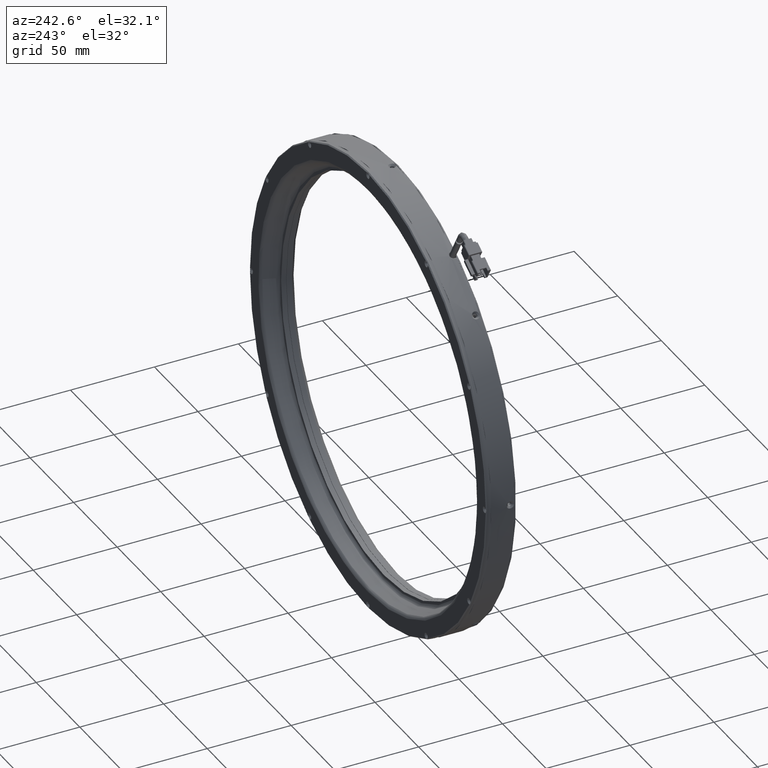
[diagram: clean part render]
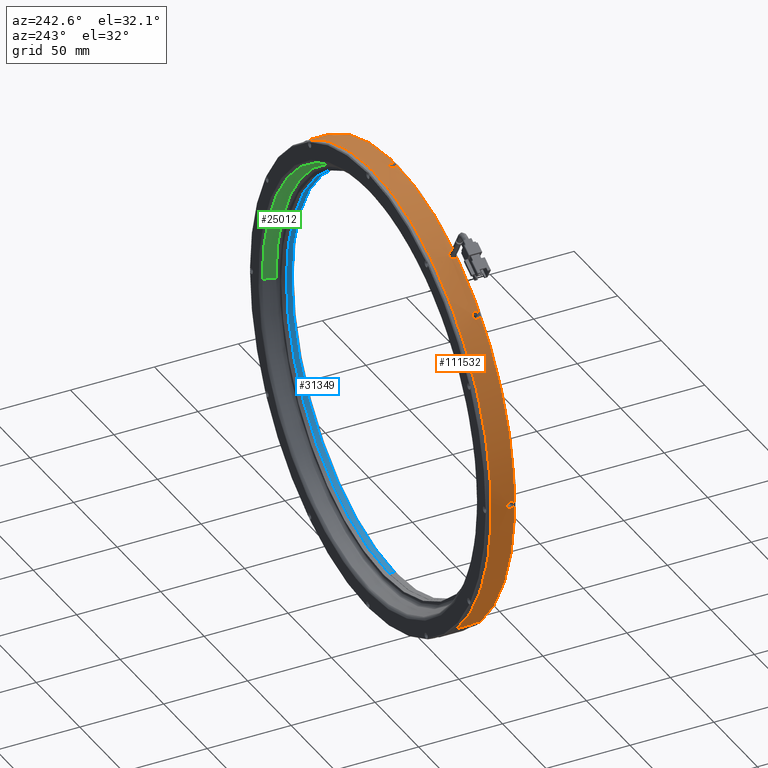
[diagram: same view with three faces highlighted in distinct colors, each labeled with its STEP entity id]
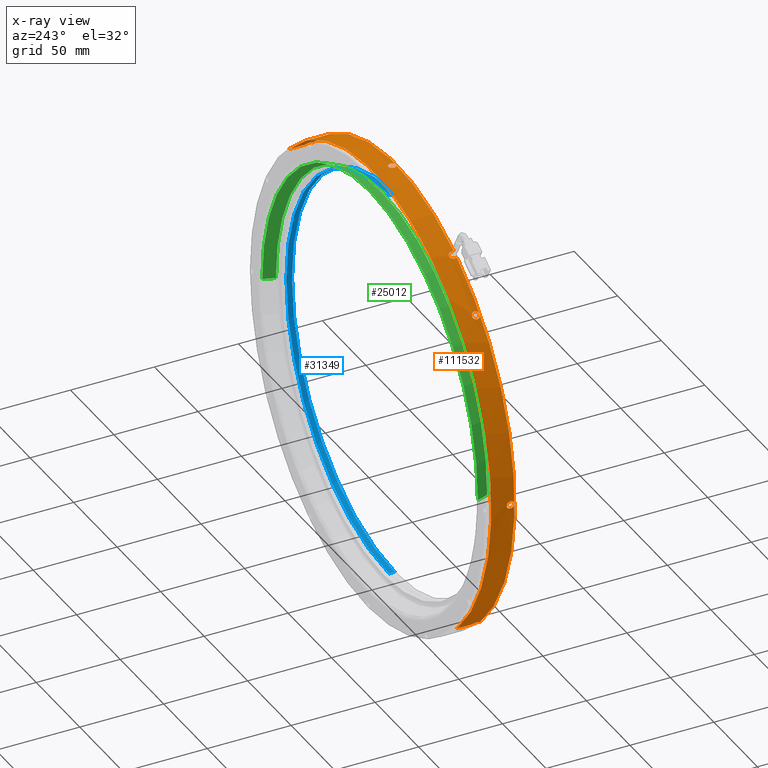
[diagram: x-ray of the same camera — body ghosted, the three highlighted faces saturated]
A machine part, auxiliary view with three faces highlighted in distinct colors.
The next image is the same camera in x-ray (body ghosted, the three faces saturated) — at least one of them is partly hidden behind the body in this view.
Their STEP definitions:

[orange] entity #111532 — the highlighted cylindrical surface (partial cylindrical patch) has radius 136 mm, axis along (0, -1, 0).
#114 = CARTESIAN_POINT ( 'NONE',  ( -159.3027793184269000, 2.318751137120334400, -0.2866651005242598600 ) ) ;
#574 = CARTESIAN_POINT ( 'NONE',  ( -159.2854956090154400, 0.4224120804676271800, 2.182486926860118800 ) ) ;
#642 = DIRECTION ( 'NONE',  ( 0.7071067811865480200, 0.0000000000000000000, 0.7071067811865470200 ) ) ;
#707 = CARTESIAN_POINT ( 'NONE',  ( -120.8474614957355700, -0.8393975857571641700, -94.76857425197322000 ) ) ;
#1281 = VECTOR ( 'NONE', #105024, 1000.000000000000000 ) ;
#1705 = CARTESIAN_POINT ( 'NONE',  ( -24.40483843466375900, 2.053681805915533100, 135.9957912599233800 ) ) ;
#2089 = CARTESIAN_POINT ( 'NONE',  ( 71.91529419645444000, -1.613760672031683300, 97.10555584605022300 ) ) ;
#2138 = CARTESIAN_POINT ( 'NONE',  ( -21.40851104385181000, 1.234631180252435200, 135.9868269658736300 ) ) ;
#2314 = CARTESIAN_POINT ( 'NONE',  ( -119.9683183523100500, 2.219301314170897900, -95.66522507973195400 ) ) ;
#2859 = CARTESIAN_POINT ( 'NONE',  ( 72.86351355921679800, 11.56998264099750500, 96.16652224137030200 ) ) ;
#3161 = CARTESIAN_POINT ( 'NONE',  ( 71.51329995925941300, 1.231570221032728800, 97.49807113080511600 ) ) ;
#3494 = CARTESIAN_POINT ( 'NONE',  ( -119.4695309235244600, -2.366976514679583600, -96.16652224137034500 ) ) ;
#4143 = CARTESIAN_POINT ( 'NONE',  ( -89.48210122964326300, -0.6669765146795694200, 118.8121530382764600 ) ) ;
#4717 = CARTESIAN_POINT ( 'NONE',  ( -93.10780521788211700, -2.366976514679583600, 116.7188518646648300 ) ) ;
#4933 = CARTESIAN_POINT ( 'NONE',  ( -120.9229388333348300, 0.8412015361908464800, 94.69082417221591200 ) ) ;
#4934 = EDGE_CURVE ( 'NONE', #9831, #25402, #33652, .T. ) ;
#5370 = CARTESIAN_POINT ( 'NONE',  ( -119.0678700534752700, 2.262371113860363300, 96.56661400162622000 ) ) ;
#5489 = CARTESIAN_POINT ( 'NONE',  ( -21.34034424053000500, -0.8397713082302186200, 135.9858481365783700 ) ) ;
#5752 = CARTESIAN_POINT ( 'NONE',  ( -119.3672039055975600, -2.066877823440802500, 96.26884703748109500 ) ) ;
#5955 = CARTESIAN_POINT ( 'NONE',  ( -24.00654334851903800, -1.954590368092795800, 135.9982453930731800 ) ) ;
#5970 = DIRECTION ( 'NONE',  ( 0.0000000000000000000, -1.000000000000000000, 0.0000000000000000000 ) ) ;
#6192 = CARTESIAN_POINT ( 'NONE',  ( -121.0003986165799400, 0.1330234853204155500, 94.61088732276373000 ) ) ;
#7285 = VERTEX_POINT ( 'NONE', #90647 ) ;
#7708 = CARTESIAN_POINT ( 'NONE',  ( -93.09611753606797900, -0.3932184659480840200, 116.7258440458054500 ) ) ;
#8152 = CARTESIAN_POINT ( 'NONE',  ( -90.83369261503673900, 1.352369534076088200, 118.0492468283402700 ) ) ;
#8585 = CARTESIAN_POINT ( 'NONE',  ( -159.2930816537006000, -1.318408872185995200, 1.646241867142423500 ) ) ;
#8598 = CARTESIAN_POINT ( 'NONE',  ( -89.48210432692978600, -0.5289361051625620600, 118.8121513130689200 ) ) ;
#8713 = CARTESIAN_POINT ( 'NONE',  ( 71.30787864053120000, 0.1330234853204155500, 97.69738993450232600 ) ) ;
#9045 = CARTESIAN_POINT ( 'NONE',  ( -159.2930762617812900, -1.317953978923950500, -1.646740645657849500 ) ) ;
#9831 = VERTEX_POINT ( 'NONE', #67922 ) ;
#9975 = CARTESIAN_POINT ( 'NONE',  ( -159.2857228018479800, 0.4203440826255182600, -2.168461705942111200 ) ) ;
#10428 = CARTESIAN_POINT ( 'NONE',  ( -159.3030102370196900, 2.333121159192467400, 0.1417424788635197900 ) ) ;
#10439 = DIRECTION ( 'NONE',  ( 0.0000000000000000000, -1.000000000000000000, 0.0000000000000000000 ) ) ;
#10484 = CARTESIAN_POINT ( 'NONE',  ( -119.4695309235244600, 2.333023485425862500, -96.16652224137034500 ) ) ;
#11023 = CARTESIAN_POINT ( 'NONE',  ( -120.6907043165206900, -1.205275985385054100, -94.92967395729959900 ) ) ;
#11565 = CARTESIAN_POINT ( 'NONE',  ( -25.48549560901630800, 0.1330234853204155000, 135.9824869268615500 ) ) ;
#12008 = CARTESIAN_POINT ( 'NONE',  ( -23.87102625445879400, 2.262119430668731100, 135.9988865617520200 ) ) ;
#12407 = CARTESIAN_POINT ( 'NONE',  ( 71.62060438310811600, -1.216764278633733600, 97.39377748829271300 ) ) ;
#12466 = CARTESIAN_POINT ( 'NONE',  ( -21.17748613817605400, 0.7086729047357242000, 135.9834325815019200 ) ) ;
#12637 = CARTESIAN_POINT ( 'NONE',  ( -120.2416763863684300, 2.040766875177075800, -95.38820096314128700 ) ) ;
#13502 = CARTESIAN_POINT ( 'NONE',  ( 71.69212099016485200, 1.583959908746958900, 97.32386851563367700 ) ) ;
#13739 = B_SPLINE_CURVE_WITH_KNOTS ( 'NONE', 3,
 ( #15180, #67227, #77628, #15601, #88018, #25994, #98429, #36430, #108860, #46776, #119275, #57224, #129729, #67663, #5752, #78076, #16057, #88468, #26465, #98876, #36864, #109304, #47225, #119718, #57681, #130157, #68127, #6192 ),
 .UNSPECIFIED., .F., .F.,
 ( 4, 2, 2, 2, 2, 2, 2, 2, 2, 2, 2, 2, 2, 4 ),
 ( 0.006871121403889675200, 0.007300564399102735900, 0.007730007394315796700, 0.008159450389528857500, 0.008588893384741919100, 0.009447779375168063200, 0.009877222370381133500, 0.01030666536559420400, 0.01073610836080727600, 0.01116555135602034800, 0.01202443734644649000, 0.01245388034165955000, 0.01288332333687261200, 0.01374220932729874200 ),
 .UNSPECIFIED. ) ;
#15179 = AXIS2_PLACEMENT_3D ( 'NONE', #69278, #59270, #38907 ) ;
#15180 = CARTESIAN_POINT ( 'NONE',  ( -117.9138960049193400, 0.1330234853204152700, 97.69738993442439300 ) ) ;
#15263 = CARTESIAN_POINT ( 'NONE',  ( -120.8009187847789900, 1.231983678219085200, 94.81647427752776000 ) ) ;
#15572 = CIRCLE ( 'NONE', #23731, 136.0000000000000300 ) ;
#15601 = CARTESIAN_POINT ( 'NONE',  ( -117.9637137925806200, -0.4355316633991739800, 97.64912530855259800 ) ) ;
#15670 = CARTESIAN_POINT ( 'NONE',  ( -118.6867736088039300, 2.053600671757594800, 96.94332484757723000 ) ) ;
#15804 = CARTESIAN_POINT ( 'NONE',  ( -21.56528461135165000, -1.205757468061440500, 135.9889208128898600 ) ) ;
#16057 = CARTESIAN_POINT ( 'NONE',  ( -119.6721887262015400, -2.052638801886044600, 95.96353865320620000 ) ) ;
#16265 = CARTESIAN_POINT ( 'NONE',  ( -24.64626342342435100, -1.624804716323849500, 135.9935167828334100 ) ) ;
#16963 = DIRECTION ( 'NONE',  ( 0.0000000000000000000, -1.000000000000000000, 0.0000000000000000000 ) ) ;
#17241 = CARTESIAN_POINT ( 'NONE',  ( -119.6726310283420500, -2.052618195270161600, -95.96309580678064300 ) ) ;
#18071 = CARTESIAN_POINT ( 'NONE',  ( -93.01564176930726500, 0.006440380977282521300, 116.7739335749839400 ) ) ;
#18507 = CARTESIAN_POINT ( 'NONE',  ( -90.50053387792131300, 1.209100647409597600, 118.2392009253320600 ) ) ;
#18949 = CARTESIAN_POINT ( 'NONE',  ( -159.2987999420772700, -1.787634835274724400, 1.101829752507554000 ) ) ;
#19152 = EDGE_CURVE ( 'NONE', #103136, #48005, #64293, .T. ) ;
#19391 = CARTESIAN_POINT ( 'NONE',  ( -159.2898356480274600, -0.9685842096116141800, -1.894497638304434300 ) ) ;
#20029 = DIRECTION ( 'NONE',  ( -0.0000000000000000000, 1.000000000000000000, -0.0000000000000000000 ) ) ;
#20071 = EDGE_CURVE ( 'NONE', #7285, #106005, #55157, .T. ) ;
#20368 = CARTESIAN_POINT ( 'NONE',  ( -159.2872471593278800, 0.8412015361929307000, -2.071190700546538200 ) ) ;
#20548 = LINE ( 'NONE', #50669, #72398 ) ;
#20816 = CARTESIAN_POINT ( 'NONE',  ( -159.3018991539785800, 2.262371113866636000, 0.5669247217240914700 ) ) ;
#20911 = EDGE_CURVE ( 'NONE', #116663, #43777, #56178, .T. ) ;
#20952 = CARTESIAN_POINT ( 'NONE',  ( -121.0003986166563500, -0.01161011630343935700, -94.61088732268881100 ) ) ;
#21394 = CARTESIAN_POINT ( 'NONE',  ( -120.4167069457009700, -1.622235651516406500, -95.21013489546513100 ) ) ;
#21942 = CARTESIAN_POINT ( 'NONE',  ( -25.48549560901632900, 0.2777170778512292300, 135.9824869268615800 ) ) ;
#22004 = B_SPLINE_CURVE_WITH_KNOTS ( 'NONE', 3,
 ( #11565, #21942, #94362, #32341, #104815, #42777, #115215, #53168, #125693, #63600, #1705, #74041, #12008, #84406, #22397, #94808, #32810, #105249, #43207, #115665, #53621, #126135, #64053, #2138, #74469, #12466, #84847, #22839 ),
 .UNSPECIFIED., .F., .F.,
 ( 4, 2, 2, 2, 2, 2, 2, 2, 2, 2, 2, 2, 2, 4 ),
 ( 1.707618421664669500E-018, 0.0004294450877443604800, 0.0008588901754887192200, 0.001288335263233077500, 0.001717780350977435800, 0.002576670526466151600, 0.003006115614210504200, 0.003435560701954856900, 0.003865005789699210000, 0.004294450877443562300, 0.005153341052932276300, 0.005582786140676638000, 0.006012231228420998100, 0.006871121403909719900 ),
 .UNSPECIFIED. ) ;
#22397 = CARTESIAN_POINT ( 'NONE',  ( -23.44771936764437800, 2.332924794088076000, 135.9999984289387700 ) ) ;
#22797 = CARTESIAN_POINT ( 'NONE',  ( 71.38790397096370600, -0.5754648091498955100, 97.61984426851938700 ) ) ;
#22839 = CARTESIAN_POINT ( 'NONE',  ( -21.12052175529322500, 0.1330234853204152200, 135.9824869268615800 ) ) ;
#23025 = CARTESIAN_POINT ( 'NONE',  ( -120.4865276742109900, 1.787144254398366400, -95.13870762744851100 ) ) ;
#23731 = AXIS2_PLACEMENT_3D ( 'NONE', #82045, #20029, #92418 ) ;
#23861 = CARTESIAN_POINT ( 'NONE',  ( 72.08084536441649000, 2.053188112360741200, 96.94322858433889700 ) ) ;
#25402 = VERTEX_POINT ( 'NONE', #101642 ) ;
#25631 = CARTESIAN_POINT ( 'NONE',  ( -120.6265802421161500, 1.584455842822584300, 94.99543398450606400 ) ) ;
#25668 = FACE_BOUND ( 'NONE', #83647, .T. ) ;
#25991 = CARTESIAN_POINT ( 'NONE',  ( -89.48210122964324900, -2.366976514679583600, 118.8121530382764600 ) ) ;
#25994 = CARTESIAN_POINT ( 'NONE',  ( -118.0717107090708100, -0.8397713082273793300, 97.54432869864038500 ) ) ;
#26062 = EDGE_CURVE ( 'NONE', #114736, #133076, #91768, .T. ) ;
#26069 = CARTESIAN_POINT ( 'NONE',  ( -118.2980861643304300, 1.584000949560546300, 97.32392043696639000 ) ) ;
#26203 = CARTESIAN_POINT ( 'NONE',  ( -21.95763244565786800, -1.622758253830477000, 135.9934932235704300 ) ) ;
#26331 = ORIENTED_EDGE ( 'NONE', *, *, #90933, .T. ) ;
#26465 = CARTESIAN_POINT ( 'NONE',  ( -119.9657643624534700, -1.954590368086704300, 95.66780741352876300 ) ) ;
#26677 = CARTESIAN_POINT ( 'NONE',  ( -25.03966541619294300, -1.207090468230156000, 135.9889343032590100 ) ) ;
#27648 = CARTESIAN_POINT ( 'NONE',  ( -119.4695309235244600, -2.066976514785033200, -96.16652224137034500 ) ) ;
#28451 = CARTESIAN_POINT ( 'NONE',  ( -92.86979581466826500, 0.3790800838724685500, 116.8608913306689800 ) ) ;
#28823 = CARTESIAN_POINT ( 'NONE',  ( 72.86351355922867900, 2.333023485419867700, 96.16652224138214000 ) ) ;
#28880 = CARTESIAN_POINT ( 'NONE',  ( -159.2857228018479800, -0.1542971119846800200, 2.168461705939216600 ) ) ;
#28886 = CARTESIAN_POINT ( 'NONE',  ( -90.19659123652273500, 0.9934096878145470800, 118.4114077106920700 ) ) ;
#28887 = FACE_BOUND ( 'NONE', #52767, .T. ) ;
#29314 = CARTESIAN_POINT ( 'NONE',  ( -159.3018952439058200, -1.996072460027903200, 0.5680175723025718800 ) ) ;
#29417 = B_SPLINE_CURVE_WITH_KNOTS ( 'NONE', 3,
 ( #93359, #20952, #52142, #124689, #62588, #707, #73036, #11023, #83418, #21394, #93797, #31803, #79288, #17241, #89640, #27648 ),
 .UNSPECIFIED., .F., .F.,
 ( 4, 2, 2, 2, 2, 2, 2, 4 ),
 ( -0.003432439768485876300, -0.003003384797425037500, -0.002574329826364198600, -0.002145274855303360200, -0.001716219884242522500, -0.0008581099421208454400, -0.0004290549710599935900, 8.582544397395253100E-016 ),
 .UNSPECIFIED. ) ;
#29772 = CARTESIAN_POINT ( 'NONE',  ( -159.2864412636557700, -0.4426259340949083600, -2.125522543980220100 ) ) ;
#30743 = CARTESIAN_POINT ( 'NONE',  ( -159.2898139970761500, 1.231983678222310100, -1.896061455248663200 ) ) ;
#31211 = CARTESIAN_POINT ( 'NONE',  ( -159.2987980673838400, 2.053600671763251100, 1.102775395757320500 ) ) ;
#31803 = CARTESIAN_POINT ( 'NONE',  ( -119.9689868269774100, -1.952902800456813600, -95.66454915269136400 ) ) ;
#32341 = CARTESIAN_POINT ( 'NONE',  ( -25.41614086929173400, 0.7015786340416604300, 135.9835851780952100 ) ) ;
#32571 = CARTESIAN_POINT ( 'NONE',  ( -93.10780521788211700, -29.84763788070300100, 116.7188518646648300 ) ) ;
#32810 = CARTESIAN_POINT ( 'NONE',  ( -23.01617690396118800, 2.318685772533270100, 135.9997696348729600 ) ) ;
#33208 = CARTESIAN_POINT ( 'NONE',  ( 71.31794725852428500, -0.1543677501644578300, 97.68764234792382700 ) ) ;
#33440 = CARTESIAN_POINT ( 'NONE',  ( -120.8096635900871000, 1.237663069226970300, -94.80751017206634400 ) ) ;
#33652 = B_SPLINE_CURVE_WITH_KNOTS ( 'NONE', 3,
 ( #46101, #108632, #36187, #129498, #67435, #5489, #77824, #15804, #88236, #26203, #98634, #36629, #109079, #46987, #119479, #57444, #129916, #67880, #5955, #78284, #16265, #88669, #26677, #99068, #37075, #109506, #47435, #119907 ),
 .UNSPECIFIED., .F., .F.,
 ( 4, 2, 2, 2, 2, 2, 2, 2, 2, 2, 2, 2, 2, 4 ),
 ( 0.006871121403909719900, 0.007300564399124036600, 0.007730007394338352400, 0.008159450389552670000, 0.008588893384766985900, 0.009447779375195619300, 0.009877222370409942000, 0.01030666536562426300, 0.01073610836083858600, 0.01116555135605290700, 0.01202443734648154200, 0.01245388034169586000, 0.01288332333691017700, 0.01374220932733881200 ),
 .UNSPECIFIED. ) ;
#33850 = CARTESIAN_POINT ( 'NONE',  ( 71.30787864053121400, 0.2776570869439180000, 97.69738993450232600 ) ) ;
#34263 = CARTESIAN_POINT ( 'NONE',  ( 72.46012143251719800, 2.261774328892548300, 96.56833217265834400 ) ) ;
#36067 = CARTESIAN_POINT ( 'NONE',  ( -120.2456661845867100, 2.053681805909930400, 95.38443492301124100 ) ) ;
#36187 = CARTESIAN_POINT ( 'NONE',  ( -21.13454697621411100, -0.1542971119846783800, 135.9827141196941800 ) ) ;
#36430 = CARTESIAN_POINT ( 'NONE',  ( -118.2329402808971800, -1.205757468057544000, 97.38744454732643900 ) ) ;
#36504 = CARTESIAN_POINT ( 'NONE',  ( -118.1206040547836300, 1.234631180249219100, 97.49681962659209900 ) ) ;
#36629 = CARTESIAN_POINT ( 'NONE',  ( -22.59595710768054400, -1.953274386847207100, 135.9982257067167700 ) ) ;
#36864 = CARTESIAN_POINT ( 'NONE',  ( -120.4147711331127700, -1.624804716318734000, 95.21211337813724600 ) ) ;
#37075 = CARTESIAN_POINT ( 'NONE',  ( -25.26572668781765800, -0.8396670414063708300, 135.9858473655014800 ) ) ;
#38590 = VERTEX_POINT ( 'NONE', #86798 ) ;
#38886 = CARTESIAN_POINT ( 'NONE',  ( -92.66280179842772200, 0.7131536411727509300, 116.9838811002227500 ) ) ;
#38907 = DIRECTION ( 'NONE',  ( 0.7071067811865485700, 0.0000000000000000000, 0.7071067811865463500 ) ) ;
#39314 = CARTESIAN_POINT ( 'NONE',  ( -159.2854956090154100, 0.1330234853204151600, 2.182486926860105000 ) ) ;
#39326 = CARTESIAN_POINT ( 'NONE',  ( -89.93394352413102400, 0.7130771374036409800, 118.5593863630711100 ) ) ;
#39772 = CARTESIAN_POINT ( 'NONE',  ( -159.3030071110925700, -2.066877823447254700, 0.1447106854881672100 ) ) ;
#40147 = EDGE_LOOP ( 'NONE', ( #40188, #45083 ) ) ;
#40188 = ORIENTED_EDGE ( 'NONE', *, *, #19152, .T. ) ;
#40210 = CARTESIAN_POINT ( 'NONE',  ( -159.2854956090153800, 0.1330234853204154400, -2.182486926863024500 ) ) ;
#41201 = CARTESIAN_POINT ( 'NONE',  ( -159.2930816537006000, 1.584455842826844300, -1.646241867145333400 ) ) ;
#41647 = CARTESIAN_POINT ( 'NONE',  ( -159.2930762617811800, 1.584000949564787500, 1.646740645654951400 ) ) ;
#42777 = CARTESIAN_POINT ( 'NONE',  ( -25.26567312377950000, 1.105818278871041800, 135.9858481365783100 ) ) ;
#43143 = CARTESIAN_POINT ( 'NONE',  ( 72.66032251141126600, -2.052620988248774900, 96.36938707560911200 ) ) ;
#43207 = CARTESIAN_POINT ( 'NONE',  ( -22.59947401579048400, 2.220637338733650400, 135.9982453930731200 ) ) ;
#43583 = CARTESIAN_POINT ( 'NONE',  ( 71.30787864053120000, 0.1330234853204155500, 97.69738993450232600 ) ) ;
#43777 = VERTEX_POINT ( 'NONE', #52916 ) ;
#43807 = CARTESIAN_POINT ( 'NONE',  ( -120.9520151264167000, 0.7023093000320191900, -94.66082775399733900 ) ) ;
#44571 = CIRCLE ( 'NONE', #54188, 136.0000000000000300 ) ;
#44660 = CARTESIAN_POINT ( 'NONE',  ( 72.76122021365250700, 2.333023485419930800, 96.26881558695828300 ) ) ;
#45083 = ORIENTED_EDGE ( 'NONE', *, *, #128098, .T. ) ;
#45967 = CARTESIAN_POINT ( 'NONE',  ( -121.0003986165799400, 0.1330234853204155500, 94.61088732276373000 ) ) ;
#46101 = CARTESIAN_POINT ( 'NONE',  ( -21.12052175529322500, 0.1330234853204152200, 135.9824869268615800 ) ) ;
#46386 = VERTEX_POINT ( 'NONE', #2859 ) ;
#46426 = CARTESIAN_POINT ( 'NONE',  ( -119.8703926809977500, 2.262119430662523600, 95.76408584442589200 ) ) ;
#46693 = ORIENTED_EDGE ( 'NONE', *, *, #26062, .T. ) ;
#46766 = ORIENTED_EDGE ( 'NONE', *, *, #76981, .F. ) ;
#46776 = CARTESIAN_POINT ( 'NONE',  ( -118.5136052777167200, -1.622758253825361100, 97.11324591570404200 ) ) ;
#46862 = CARTESIAN_POINT ( 'NONE',  ( -117.9548445851506100, 0.7086729047340504200, 97.65777871181077800 ) ) ;
#46945 = CARTESIAN_POINT ( 'NONE',  ( -89.48210122964326300, -29.84763788070300100, 118.8121530382764600 ) ) ;
#46987 = CARTESIAN_POINT ( 'NONE',  ( -23.01634358163195800, -2.052704166479455400, 135.9997706362730100 ) ) ;
#47225 = CARTESIAN_POINT ( 'NONE',  ( -120.6897080475492300, -1.207090468226263100, 94.93069585893738300 ) ) ;
#47435 = CARTESIAN_POINT ( 'NONE',  ( -25.48549560901631500, -0.1563622896624973200, 135.9824869268615500 ) ) ;
#47639 = ORIENTED_EDGE ( 'NONE', *, *, #69921, .F. ) ;
#48005 = VERTEX_POINT ( 'NONE', #52050 ) ;
#48147 = ORIENTED_EDGE ( 'NONE', *, *, #61040, .T. ) ;
#49049 = DIRECTION ( 'NONE',  ( 0.0000000000000000000, -1.000000000000000000, 0.0000000000000000000 ) ) ;
#49250 = CARTESIAN_POINT ( 'NONE',  ( -92.21215080154121300, 1.156506975813422500, 117.2501319484948400 ) ) ;
#49335 = B_SPLINE_CURVE_WITH_KNOTS ( 'NONE', 3,
 ( #106282, #33850, #116702, #54643, #127147, #65072, #3161, #75502, #13502, #85865, #23861, #96296, #34263, #106729, #44660, #117157 ),
 .UNSPECIFIED., .F., .F.,
 ( 4, 2, 2, 2, 2, 2, 2, 4 ),
 ( 0.01029678256474865700, 0.01072583379677307300, 0.01115488502879749000, 0.01158393626082190900, 0.01201298749284632600, 0.01287108995689513800, 0.01330014118891957200, 0.01372919242094400700 ),
 .UNSPECIFIED. ) ;
#49682 = CARTESIAN_POINT ( 'NONE',  ( -159.2865938602490400, -0.4355316634008276100, 2.113132187135557500 ) ) ;
#49694 = CARTESIAN_POINT ( 'NONE',  ( -89.72551546705805900, 0.3817784676109329300, 118.6762670761039300 ) ) ;
#50121 = CARTESIAN_POINT ( 'NONE',  ( -159.3027783170267600, -2.052638801892456400, -0.2868317781950359700 ) ) ;
#50669 = CARTESIAN_POINT ( 'NONE',  ( 72.86351355921679800, -29.84763788070300100, 96.16652224137030200 ) ) ;
#51090 = CARTESIAN_POINT ( 'NONE',  ( -159.2854956090153800, 0.2777170778512278400, -2.182486926862984500 ) ) ;
#51551 = CARTESIAN_POINT ( 'NONE',  ( -159.2987999420772100, 2.053681805915562400, -1.101829752510457200 ) ) ;
#51992 = CARTESIAN_POINT ( 'NONE',  ( -159.2898356480274600, 1.234631180252445400, 1.894497638301530200 ) ) ;
#52050 = CARTESIAN_POINT ( 'NONE',  ( -159.2854956090153800, 0.1330234853204154400, -2.182486926863024500 ) ) ;
#52142 = CARTESIAN_POINT ( 'NONE',  ( -120.9906499482375800, -0.1541788272280675600, -94.62095702396753400 ) ) ;
#52268 = LINE ( 'NONE', #121538, #79837 ) ;
#52646 = CARTESIAN_POINT ( 'NONE',  ( 72.86351355921679800, -2.066976514785981300, 96.16652224137030200 ) ) ;
#52767 = EDGE_LOOP ( 'NONE', ( #64252, #132915 ) ) ;
#52916 = CARTESIAN_POINT ( 'NONE',  ( -93.10780521788211700, -0.6669765146795694200, 116.7188518646648100 ) ) ;
#53168 = CARTESIAN_POINT ( 'NONE',  ( -25.04073275295788300, 1.471804438702277700, 135.9889208128897700 ) ) ;
#53567 = CARTESIAN_POINT ( 'NONE',  ( 72.36221639757803800, -1.953254343531195800, 96.66530967015621900 ) ) ;
#53621 = CARTESIAN_POINT ( 'NONE',  ( -21.95975394088516800, 1.890851686964687000, 135.9935167828334700 ) ) ;
#53799 = CARTESIAN_POINT ( 'NONE',  ( -119.5718176082366300, 2.333023485425979700, -96.06423555665820400 ) ) ;
#54188 = AXIS2_PLACEMENT_3D ( 'NONE', #58330, #130808, #68787 ) ;
#54227 = CARTESIAN_POINT ( 'NONE',  ( -121.0003986166563400, 0.2776457785761395300, -94.61088732268878200 ) ) ;
#54643 = CARTESIAN_POINT ( 'NONE',  ( 71.35765528636595400, 0.7013471116698454200, 97.64916518486755600 ) ) ;
#55157 = LINE ( 'NONE', #99772, #79480 ) ;
#56178 = LINE ( 'NONE', #32571, #1281 ) ;
#56845 = CARTESIAN_POINT ( 'NONE',  ( -119.5718557196366600, 2.332924794081623300, 96.06419522344194200 ) ) ;
#57224 = CARTESIAN_POINT ( 'NONE',  ( -118.9683153457549000, -1.953274386841126900, 96.66522858951513800 ) ) ;
#57302 = CARTESIAN_POINT ( 'NONE',  ( -117.9138960049193400, 0.1330234853204152700, 97.69738993442439300 ) ) ;
#57444 = CARTESIAN_POINT ( 'NONE',  ( -23.44475116101972400, -2.067074188551597300, 136.0000015548658900 ) ) ;
#57681 = CARTESIAN_POINT ( 'NONE',  ( -120.8473747110567700, -0.8396670414035324300, 94.76866360618689100 ) ) ;
#57987 = CARTESIAN_POINT ( 'NONE',  ( -117.9138960049193400, 0.1330234853204152700, 97.69738993442439300 ) ) ;
#58330 = CARTESIAN_POINT ( 'NONE',  ( -23.30300868215381600, 11.56998264099750500, -2.420481350073888600E-014 ) ) ;
#59270 = DIRECTION ( 'NONE',  ( 0.0000000000000000000, -1.000000000000000000, 0.0000000000000000000 ) ) ;
#59687 = CARTESIAN_POINT ( 'NONE',  ( -91.54019504300070800, 1.418560100184624200, 117.6425122508802600 ) ) ;
#59783 = B_SPLINE_CURVE_WITH_KNOTS ( 'NONE', 3,
 ( #52646, #105198, #43143, #115619, #53567, #126074, #64001, #2089, #74418, #12407, #84789, #22797, #95199, #33208, #105635, #43583 ),
 .UNSPECIFIED., .F., .F.,
 ( 4, 2, 2, 2, 2, 2, 2, 4 ),
 ( 0.006864611166064693700, 0.007293632590900187700, 0.007722654015735681700, 0.008151675440571175600, 0.008580696865406670400, 0.009438739715077658400, 0.009867761139913156600, 0.01029678256474865700 ),
 .UNSPECIFIED. ) ;
#60121 = CARTESIAN_POINT ( 'NONE',  ( -159.2888568187322600, -0.8397713082302252800, 1.962664441623317700 ) ) ;
#60132 = CARTESIAN_POINT ( 'NONE',  ( -89.57603326191093600, 0.006919970048425387100, 118.7597953670845100 ) ) ;
#60252 = EDGE_CURVE ( 'NONE', #87249, #116663, #15572, .T. ) ;
#60573 = CARTESIAN_POINT ( 'NONE',  ( -159.3012540752269800, -1.954590368092816900, -0.7035346663657259200 ) ) ;
#61040 = EDGE_CURVE ( 'NONE', #106005, #105753, #104768, .T. ) ;
#62003 = CARTESIAN_POINT ( 'NONE',  ( -159.3018952439058800, 2.262119430668761800, -0.5680175723054772300 ) ) ;
#62451 = CARTESIAN_POINT ( 'NONE',  ( -159.2864412636557500, 0.7086729047357363000, 2.125522543977306900 ) ) ;
#62528 = DIRECTION ( 'NONE',  ( -0.0000000000000000000, 1.000000000000000000, -0.0000000000000000000 ) ) ;
#62588 = CARTESIAN_POINT ( 'NONE',  ( -120.9230027517862100, -0.5748699914802650700, -94.69075825178376200 ) ) ;
#63600 = CARTESIAN_POINT ( 'NONE',  ( -24.64838491865166900, 1.888805224471315200, 135.9934932235704000 ) ) ;
#64001 = CARTESIAN_POINT ( 'NONE',  ( 72.08519228098713000, -1.774719904537392000, 96.93866770421482200 ) ) ;
#64053 = CARTESIAN_POINT ( 'NONE',  ( -21.56635194811657600, 1.473137438870989700, 135.9889343032590100 ) ) ;
#64229 = CARTESIAN_POINT ( 'NONE',  ( -119.8702606508678300, 2.262147729834675500, -95.76421850725533600 ) ) ;
#64252 = ORIENTED_EDGE ( 'NONE', *, *, #4934, .T. ) ;
#64293 = B_SPLINE_CURVE_WITH_KNOTS ( 'NONE', 3,
 ( #39314, #131286, #28880, #49682, #122193, #60121, #132598, #70582, #8585, #80984, #18949, #91353, #29314, #101794, #39772, #112221, #50121, #122650, #60573, #133042, #70997, #9045, #81400, #19391, #91791, #29772, #102219, #40210 ),
 .UNSPECIFIED., .F., .F.,
 ( 4, 2, 2, 2, 2, 2, 2, 2, 2, 2, 2, 2, 2, 4 ),
 ( 0.006871121403909681700, 0.007300564399123995800, 0.007730007394338310800, 0.008159450389552624900, 0.008588893384766939000, 0.009447779375195569000, 0.009877222370409883100, 0.01030666536562419900, 0.01073610836083851300, 0.01116555135605282700, 0.01202443734648145700, 0.01245388034169577300, 0.01288332333691008500, 0.01374220932733871500 ),
 .UNSPECIFIED. ) ;
#65072 = CARTESIAN_POINT ( 'NONE',  ( 71.46556556981829500, 1.105444556398151200, 97.54445281358273700 ) ) ;
#66849 = CARTESIAN_POINT ( 'NONE',  ( -120.9521339907081800, 0.7015786340400020900, 94.66070511042501300 ) ) ;
#67227 = CARTESIAN_POINT ( 'NONE',  ( -117.9138960049193400, -0.01167010720997858200, 97.69738993442440700 ) ) ;
#67304 = CARTESIAN_POINT ( 'NONE',  ( -119.2665473353617500, 2.318685772526857900, 96.36918004404596200 ) ) ;
#67435 = CARTESIAN_POINT ( 'NONE',  ( -21.23181798160968400, -0.5751545655520917700, 135.9842384771741300 ) ) ;
#67663 = CARTESIAN_POINT ( 'NONE',  ( -119.2666659023698800, -2.052704166473080500, 96.36906289323152900 ) ) ;
#67880 = CARTESIAN_POINT ( 'NONE',  ( -23.86993340388029900, -1.996324143225777000, 135.9988904718247200 ) ) ;
#67922 = CARTESIAN_POINT ( 'NONE',  ( -21.12052175529322500, 0.1330234853204152200, 135.9824869268615800 ) ) ;
#68127 = CARTESIAN_POINT ( 'NONE',  ( -121.0003986165799100, -0.1563622896616540800, 94.61088732276373000 ) ) ;
#68223 = LINE ( 'NONE', #46945, #95743 ) ;
#68787 = DIRECTION ( 'NONE',  ( 0.7071067811865485700, 0.0000000000000000000, 0.7071067811865463500 ) ) ;
#68854 = EDGE_CURVE ( 'NONE', #105753, #125147, #29417, .T. ) ;
#69278 = CARTESIAN_POINT ( 'NONE',  ( -23.30300868215381600, -29.84763788070300100, -2.420481350073888600E-014 ) ) ;
#69921 = EDGE_CURVE ( 'NONE', #126391, #133076, #52268, .T. ) ;
#70143 = CARTESIAN_POINT ( 'NONE',  ( -91.06614360473757600, 1.405343992093929700, 117.9159679375318300 ) ) ;
#70582 = CARTESIAN_POINT ( 'NONE',  ( -159.2919294950436300, -1.205757468061459300, 1.737724070801705200 ) ) ;
#70594 = CARTESIAN_POINT ( 'NONE',  ( -89.49426218160334700, -0.3908044267226659700, 118.8053815483892900 ) ) ;
#70997 = CARTESIAN_POINT ( 'NONE',  ( -159.2965254649872400, -1.624804716323863900, -1.343254741271062500 ) ) ;
#71111 = CARTESIAN_POINT ( 'NONE',  ( 72.86351355921679800, -2.066976514785981300, 96.16652224137030200 ) ) ;
#71799 = ORIENTED_EDGE ( 'NONE', *, *, #95053, .T. ) ;
#72398 = VECTOR ( 'NONE', #10439, 1000.000000000000000 ) ;
#72452 = CARTESIAN_POINT ( 'NONE',  ( -159.3030071110926300, 2.332924794088106200, -0.1447106854910695800 ) ) ;
#72903 = CARTESIAN_POINT ( 'NONE',  ( -159.2854956090154100, 0.1330234853204151600, 2.182486926860105000 ) ) ;
#73036 = CARTESIAN_POINT ( 'NONE',  ( -120.8010798129579800, -0.9655232503916740800, -94.81630864141428100 ) ) ;
#74041 = CARTESIAN_POINT ( 'NONE',  ( -24.01006025662898600, 2.219321357488032400, 135.9982257067167100 ) ) ;
#74418 = CARTESIAN_POINT ( 'NONE',  ( 71.83569894529418300, -1.521097283758639800, 97.18351899205760000 ) ) ;
#74469 = CARTESIAN_POINT ( 'NONE',  ( -21.34029067649189300, 1.105714012047193800, 135.9858473655014800 ) ) ;
#74652 = CARTESIAN_POINT ( 'NONE',  ( -120.1536219239736200, 2.108608592638038000, -95.47762092692930500 ) ) ;
#75502 = CARTESIAN_POINT ( 'NONE',  ( 71.62666527514478800, 1.471322956026267700, 97.38769563436775900 ) ) ;
#76981 = EDGE_CURVE ( 'NONE', #46386, #106998, #20548, .T. ) ;
#77265 = CARTESIAN_POINT ( 'NONE',  ( -120.8473373807958500, 1.105818278868204900, 94.76870202691523600 ) ) ;
#77518 = FACE_OUTER_BOUND ( 'NONE', #123208, .T. ) ;
#77628 = CARTESIAN_POINT ( 'NONE',  ( -117.9239739833326600, -0.1542971119838403000, 97.68763325519613300 ) ) ;
#77709 = CARTESIAN_POINT ( 'NONE',  ( -118.9708160956843600, 2.220637338727529100, 96.66275568029787700 ) ) ;
#77824 = CARTESIAN_POINT ( 'NONE',  ( -21.40694722690758700, -0.9659367075814573300, 135.9868053149223200 ) ) ;
#78076 = CARTESIAN_POINT ( 'NONE',  ( -119.5697590909687000, -2.067074188545164200, 96.06629627283844300 ) ) ;
#78284 = CARTESIAN_POINT ( 'NONE',  ( -24.40578407791351600, -1.787553701122371200, 135.9957893852299500 ) ) ;
#79288 = CARTESIAN_POINT ( 'NONE',  ( -119.8713408548116800, -1.995727358250800200, -95.76313011467154000 ) ) ;
#79480 = VECTOR ( 'NONE', #16963, 1000.000000000000000 ) ;
#79837 = VECTOR ( 'NONE', #49049, 1000.000000000000000 ) ;
#80110 = CARTESIAN_POINT ( 'NONE',  ( -93.05031837659986100, -0.1262270282795680000, 116.7532162387274200 ) ) ;
#80538 = CARTESIAN_POINT ( 'NONE',  ( -90.72055311480497200, 1.313165732740710700, 118.1138888131636000 ) ) ;
#80984 = CARTESIAN_POINT ( 'NONE',  ( -159.2965019057242800, -1.622758253830490100, 1.345376236495463800 ) ) ;
#80994 = CARTESIAN_POINT ( 'NONE',  ( -89.48210122964326300, -0.6669765146795694200, 118.8121530382764600 ) ) ;
#81400 = CARTESIAN_POINT ( 'NONE',  ( -159.2919429854128700, -1.207090468230169500, -1.736656734039658400 ) ) ;
#81480 = EDGE_CURVE ( 'NONE', #126391, #84109, #59783, .T. ) ;
#81717 = EDGE_CURVE ( 'NONE', #84109, #106998, #49335, .T. ) ;
#82045 = CARTESIAN_POINT ( 'NONE',  ( -23.30300868215381600, -2.366976514679583600, -2.420481350073888600E-014 ) ) ;
#82368 = CARTESIAN_POINT ( 'NONE',  ( -159.2865938602490100, 0.7015786340416679800, -2.113132187138453400 ) ) ;
#82823 = CARTESIAN_POINT ( 'NONE',  ( -159.3027783170267900, 2.318685772533296300, 0.2868317781921350100 ) ) ;
#82962 = EDGE_CURVE ( 'NONE', #46386, #7285, #44571, .T. ) ;
#83310 = B_SPLINE_CURVE_WITH_KNOTS ( 'NONE', 3,
 ( #45967, #118461, #128930, #66849, #4933, #77265, #15263, #87642, #25631, #98062, #36067, #108510, #46426, #118914, #56845, #129364, #67304, #5370, #77709, #15670, #88100, #26069, #98514, #36504, #108941, #46862, #119350, #57302 ),
 .UNSPECIFIED., .F., .F.,
 ( 4, 2, 2, 2, 2, 2, 2, 2, 2, 2, 2, 2, 2, 4 ),
 ( 1.084202172485504400E-018, 0.0004294450877431260600, 0.0008588901754862510300, 0.001288335263229376100, 0.001717780350972501000, 0.002576670526458752100, 0.003006115614201850100, 0.003435560701944948200, 0.003865005789688046200, 0.004294450877431144200, 0.005153341052917313400, 0.005582786140660398400, 0.006012231228403483500, 0.006871121403889675200 ),
 .UNSPECIFIED. ) ;
#83418 = CARTESIAN_POINT ( 'NONE',  ( -120.6268771977865700, -1.317912938105652200, -94.99512967231969200 ) ) ;
#83647 = EDGE_LOOP ( 'NONE', ( #87377, #119163 ) ) ;
#84109 = VERTEX_POINT ( 'NONE', #8713 ) ;
#84406 = CARTESIAN_POINT ( 'NONE',  ( -23.58967378267756800, 2.318751137120302000, 135.9997706362730100 ) ) ;
#84789 = CARTESIAN_POINT ( 'NONE',  ( 71.50450148991167500, -0.9716160985869818400, 97.50665490793399200 ) ) ;
#84847 = CARTESIAN_POINT ( 'NONE',  ( -21.12052175529321800, 0.4224120804676599300, 135.9824869268615800 ) ) ;
#85026 = CARTESIAN_POINT ( 'NONE',  ( -120.4085645282037300, 1.879807642671408300, -95.21830287860872500 ) ) ;
#85865 = CARTESIAN_POINT ( 'NONE',  ( 71.90712621331046300, 1.888282622157920500, 97.11369826354791700 ) ) ;
#86798 = CARTESIAN_POINT ( 'NONE',  ( -121.0003986165799400, 0.1330234853204155500, 94.61088732276373000 ) ) ;
#87061 = ORIENTED_EDGE ( 'NONE', *, *, #131373, .T. ) ;
#87249 = VERTEX_POINT ( 'NONE', #3494 ) ;
#87377 = ORIENTED_EDGE ( 'NONE', *, *, #105303, .T. ) ;
#87642 = CARTESIAN_POINT ( 'NONE',  ( -120.6904532294819600, 1.471804438698370200, 94.92993159874158900 ) ) ;
#88018 = CARTESIAN_POINT ( 'NONE',  ( -117.9938328543715200, -0.5751545655500179800, 97.61993015117931800 ) ) ;
#88100 = CARTESIAN_POINT ( 'NONE',  ( -118.5151220602928700, 1.890851686959564000, 97.11176245095718700 ) ) ;
#88236 = CARTESIAN_POINT ( 'NONE',  ( -21.65676681501090400, -1.318408872185982100, 135.9900729715468200 ) ) ;
#88468 = CARTESIAN_POINT ( 'NONE',  ( -119.8696226837818100, -1.996324143219550700, 95.76486137131971100 ) ) ;
#88669 = CARTESIAN_POINT ( 'NONE',  ( -24.94974932781114100, -1.317953978923935200, 135.9900675796274100 ) ) ;
#88685 = CARTESIAN_POINT ( 'NONE',  ( -119.4695309235244600, -29.84763788070300100, -96.16652224137034500 ) ) ;
#89237 = ORIENTED_EDGE ( 'NONE', *, *, #60252, .T. ) ;
#89632 = CARTESIAN_POINT ( 'NONE',  ( -119.4695309235244600, -2.066976514785033200, -96.16652224137034500 ) ) ;
#89640 = CARTESIAN_POINT ( 'NONE',  ( -119.5718251605643900, -2.066976514778120900, -96.06422800435405000 ) ) ;
#90471 = CARTESIAN_POINT ( 'NONE',  ( -92.92516624021193600, 0.2592152953595831000, 116.8278988575920600 ) ) ;
#90647 = CARTESIAN_POINT ( 'NONE',  ( -119.4695309235244600, 11.56998264099750500, -96.16652224137034500 ) ) ;
#90703 = ORIENTED_EDGE ( 'NONE', *, *, #82962, .T. ) ;
#90909 = CARTESIAN_POINT ( 'NONE',  ( -90.39399279520124300, 1.144000186733634500, 118.2996733458243000 ) ) ;
#90933 = EDGE_CURVE ( 'NONE', #125147, #87249, #127415, .T. ) ;
#91210 = ORIENTED_EDGE ( 'NONE', *, *, #68854, .T. ) ;
#91353 = CARTESIAN_POINT ( 'NONE',  ( -159.3012343888706000, -1.953274386847221800, 0.7070515744727788900 ) ) ;
#91768 = CIRCLE ( 'NONE', #125350, 136.0000000000000300 ) ;
#91791 = CARTESIAN_POINT ( 'NONE',  ( -159.2888560476552600, -0.8396670414063771600, -1.962718005664379600 ) ) ;
#92031 = CYLINDRICAL_SURFACE ( 'NONE', #15179, 136.0000000000000300 ) ;
#92418 = DIRECTION ( 'NONE',  ( 0.7071067811865485700, 0.0000000000000000000, 0.7071067811865463500 ) ) ;
#92490 = B_SPLINE_CURVE_WITH_KNOTS ( 'NONE', 3,
 ( #123648, #51090, #9975, #82368, #20368, #92772, #30743, #103197, #41201, #113641, #51551, #124106, #62003, #114, #72452, #10428, #82823, #20816, #93225, #31211, #103667, #41647, #114111, #51992, #124565, #62451, #574, #72903 ),
 .UNSPECIFIED., .F., .F.,
 ( 4, 2, 2, 2, 2, 2, 2, 2, 2, 2, 2, 2, 2, 4 ),
 ( 5.838166954281239800E-018, 0.0004294450877443612300, 0.0008588901754887166100, 0.001288335263233071900, 0.001717780350977427400, 0.002576670526466136400, 0.003006115614210490800, 0.003435560701954845200, 0.003865005789699199600, 0.004294450877443554400, 0.005153341052932262400, 0.005582786140676616400, 0.006012231228420971200, 0.006871121403909681700 ),
 .UNSPECIFIED. ) ;
#92772 = CARTESIAN_POINT ( 'NONE',  ( -159.2888568187321400, 1.105818278871060900, -1.962664441626213800 ) ) ;
#93225 = CARTESIAN_POINT ( 'NONE',  ( -159.3012540752270400, 2.220637338733674900, 0.7035346663628293500 ) ) ;
#93359 = CARTESIAN_POINT ( 'NONE',  ( -121.0003986166551500, 0.1330234853204152700, -94.61088732268608200 ) ) ;
#93797 = CARTESIAN_POINT ( 'NONE',  ( -120.2462372664920000, -1.787141141719117000, -95.38385404657107400 ) ) ;
#94362 = CARTESIAN_POINT ( 'NONE',  ( -25.47147038809539100, 0.4203440826255093700, 135.9827141196941500 ) ) ;
#94808 = CARTESIAN_POINT ( 'NONE',  ( -23.16126620328979500, 2.333121159192438100, 136.0000015548659500 ) ) ;
#95053 = EDGE_CURVE ( 'NONE', #43777, #114034, #123206, .T. ) ;
#95199 = CARTESIAN_POINT ( 'NONE',  ( 71.35781907184252800, -0.4362623293917069500, 97.64900644426373300 ) ) ;
#95434 = CARTESIAN_POINT ( 'NONE',  ( -120.6967861704458800, 1.482811249273587200, -94.92361306526261400 ) ) ;
#95743 = VECTOR ( 'NONE', #109043, 1000.000000000000000 ) ;
#96296 = CARTESIAN_POINT ( 'NONE',  ( 72.36154047053690900, 2.218949771098544400, 96.66597814482413800 ) ) ;
#98062 = CARTESIAN_POINT ( 'NONE',  ( -120.4162545978596100, 1.888805224466188800, 95.21059659556118500 ) ) ;
#98429 = CARTESIAN_POINT ( 'NONE',  ( -118.1194829596834100, -0.9659367075782600000, 97.49791010262347900 ) ) ;
#98514 = CARTESIAN_POINT ( 'NONE',  ( -118.2337045410930500, 1.473137438867079700, 97.38669936539368200 ) ) ;
#98521 = CARTESIAN_POINT ( 'NONE',  ( -159.2854956090154100, 0.1330234853204151600, 2.182486926860105000 ) ) ;
#98634 = CARTESIAN_POINT ( 'NONE',  ( -22.20117892964577100, -1.787634835274707300, 135.9957912599234400 ) ) ;
#98876 = CARTESIAN_POINT ( 'NONE',  ( -120.2463335297327700, -1.787553701116769900, 95.38376492664831100 ) ) ;
#99068 = CARTESIAN_POINT ( 'NONE',  ( -25.19750632045771600, -0.9685842096115997400, 135.9868269658735800 ) ) ;
#99203 = CARTESIAN_POINT ( 'NONE',  ( -121.0003986166551500, 0.1330234853204152700, -94.61088732268608200 ) ) ;
#99641 = ORIENTED_EDGE ( 'NONE', *, *, #81480, .T. ) ;
#99772 = CARTESIAN_POINT ( 'NONE',  ( -119.4695309235244600, -29.84763788070300100, -96.16652224137034500 ) ) ;
#99784 = VECTOR ( 'NONE', #5970, 1000.000000000000000 ) ;
#100890 = CARTESIAN_POINT ( 'NONE',  ( -92.73893359780284100, 0.6058900337796371300, 116.9386938769513600 ) ) ;
#101348 = CARTESIAN_POINT ( 'NONE',  ( -90.10446084053074900, 0.9074021270610350700, 118.4633933425674600 ) ) ;
#101642 = CARTESIAN_POINT ( 'NONE',  ( -25.48549560901630800, 0.1330234853204155000, 135.9824869268615500 ) ) ;
#101794 = CARTESIAN_POINT ( 'NONE',  ( -159.3027793184268700, -2.052704166479474100, 0.2866651005213564600 ) ) ;
#102219 = CARTESIAN_POINT ( 'NONE',  ( -159.2854956090153300, -0.1563622896624938500, -2.182486926862981000 ) ) ;
#103136 = VERTEX_POINT ( 'NONE', #98521 ) ;
#103197 = CARTESIAN_POINT ( 'NONE',  ( -159.2919294950436600, 1.471804438702294600, -1.737724070804599100 ) ) ;
#103667 = CARTESIAN_POINT ( 'NONE',  ( -159.2965254649872400, 1.890851686964702100, 1.343254741268165900 ) ) ;
#104768 = B_SPLINE_CURVE_WITH_KNOTS ( 'NONE', 3,
 ( #126298, #53799, #115857, #64229, #2314, #74652, #12637, #85026, #23025, #95434, #33440, #105867, #43807, #116295, #54227, #126724 ),
 .UNSPECIFIED., .F., .F.,
 ( 4, 2, 2, 2, 2, 2, 2, 4 ),
 ( 0.006864611166063686700, 0.007293632590898900500, 0.007722654015734115200, 0.008151675440569329900, 0.008580696865404543700, 0.009438739715074990300, 0.009867761139910209400, 0.01029678256474542800 ),
 .UNSPECIFIED. ) ;
#104815 = CARTESIAN_POINT ( 'NONE',  ( -25.37419938269982500, 0.8412015361929103800, 135.9842384771740700 ) ) ;
#105024 = DIRECTION ( 'NONE',  ( -0.0000000000000000000, 1.000000000000000000, -0.0000000000000000000 ) ) ;
#105095 = FACE_BOUND ( 'NONE', #40147, .T. ) ;
#105198 = CARTESIAN_POINT ( 'NONE',  ( 72.76122687450460100, -2.066976514786159800, 96.26880892608251400 ) ) ;
#105249 = CARTESIAN_POINT ( 'NONE',  ( -22.73608396042922700, 2.262371113866608900, 135.9988904718246900 ) ) ;
#105303 = EDGE_CURVE ( 'NONE', #132494, #38590, #13739, .T. ) ;
#105635 = CARTESIAN_POINT ( 'NONE',  ( 71.30787864053120000, -0.01160006827046596400, 97.69738993450229700 ) ) ;
#105753 = VERTEX_POINT ( 'NONE', #99203 ) ;
#105867 = CARTESIAN_POINT ( 'NONE',  ( -120.9228529506723100, 0.8415117797901262600, -94.69091265311847400 ) ) ;
#106005 = VERTEX_POINT ( 'NONE', #10484 ) ;
#106282 = CARTESIAN_POINT ( 'NONE',  ( 71.30787864053120000, 0.1330234853204155500, 97.69738993450232600 ) ) ;
#106729 = CARTESIAN_POINT ( 'NONE',  ( 72.66008712462641500, 2.318665165911937700, 96.36962234618853500 ) ) ;
#106998 = VERTEX_POINT ( 'NONE', #28823 ) ;
#108510 = CARTESIAN_POINT ( 'NONE',  ( -119.9682372716706300, 2.219321357481942600, 95.66530666359929600 ) ) ;
#108632 = CARTESIAN_POINT ( 'NONE',  ( -21.12052175529321800, -0.01167010721036671800, 135.9824869268616400 ) ) ;
#108860 = CARTESIAN_POINT ( 'NONE',  ( -118.2984426666616900, -1.318408872181756600, 97.32357155996057000 ) ) ;
#108941 = CARTESIAN_POINT ( 'NONE',  ( -118.0716722883425300, 1.105714012044365400, 97.54436602890119400 ) ) ;
#109043 = DIRECTION ( 'NONE',  ( 0.0000000000000000000, -1.000000000000000000, 0.0000000000000000000 ) ) ;
#109079 = CARTESIAN_POINT ( 'NONE',  ( -22.73499110985074600, -1.996072460027885000, 135.9988865617520200 ) ) ;
#109304 = CARTESIAN_POINT ( 'NONE',  ( -120.6269291191219300, -1.317953978919718300, 94.99507748217483500 ) ) ;
#109506 = CARTESIAN_POINT ( 'NONE',  ( -25.42853122613350400, -0.4426259340949011400, 135.9834325815018900 ) ) ;
#110891 = CARTESIAN_POINT ( 'NONE',  ( -93.10780200236594300, -0.5289384919905555400, 116.7188537877342000 ) ) ;
#111348 = CARTESIAN_POINT ( 'NONE',  ( -92.41332659114564800, 1.001441945695804600, 117.1315555780405600 ) ) ;
#111532 = ADVANCED_FACE ( 'NONE', ( #105095, #25668, #28887, #77518 ), #92031, .T. ) ;
#111795 = CARTESIAN_POINT ( 'NONE',  ( -89.85809731127119400, 0.6075765980260234800, 118.6019643693970900 ) ) ;
#112180 = CARTESIAN_POINT ( 'NONE',  ( 72.86351355921679800, -2.366976514679583600, 96.16652224137030200 ) ) ;
#112221 = CARTESIAN_POINT ( 'NONE',  ( -159.3030102370197800, -2.067074188551618600, -0.1417424788664208000 ) ) ;
#113641 = CARTESIAN_POINT ( 'NONE',  ( -159.2965019057242600, 1.888805224471340900, -1.345376236498373000 ) ) ;
#114034 = VERTEX_POINT ( 'NONE', #4143 ) ;
#114111 = CARTESIAN_POINT ( 'NONE',  ( -159.2919429854129300, 1.473137438871002600, 1.736656734036754900 ) ) ;
#114736 = VERTEX_POINT ( 'NONE', #25991 ) ;
#115215 = CARTESIAN_POINT ( 'NONE',  ( -25.19907013740194300, 1.231983678222292600, 135.9868053149222600 ) ) ;
#115619 = CARTESIAN_POINT ( 'NONE',  ( 72.46120982510153400, -1.996100759194982600, 96.56725196871396100 ) ) ;
#115665 = CARTESIAN_POINT ( 'NONE',  ( -22.20023328639600300, 2.053600671763227600, 135.9957893852300100 ) ) ;
#115857 = CARTESIAN_POINT ( 'NONE',  ( -119.6723957577631600, 2.318667958888537100, -95.96333119356494000 ) ) ;
#116295 = CARTESIAN_POINT ( 'NONE',  ( -120.9906510300766600, 0.4204147208049812700, -94.62095594067915300 ) ) ;
#116663 = VERTEX_POINT ( 'NONE', #4717 ) ;
#116702 = CARTESIAN_POINT ( 'NONE',  ( 71.31794834181261000, 0.4202257978685585100, 97.68764126608473900 ) ) ;
#117157 = CARTESIAN_POINT ( 'NONE',  ( 72.86351355922867900, 2.333023485419867700, 96.16652224138214000 ) ) ;
#118461 = CARTESIAN_POINT ( 'NONE',  ( -121.0003986165799100, 0.2777170778508072900, 94.61088732276371600 ) ) ;
#118839 = ORIENTED_EDGE ( 'NONE', *, *, #20911, .T. ) ;
#118914 = CARTESIAN_POINT ( 'NONE',  ( -119.6720715753870900, 2.318751137113928000, 95.96365722021430100 ) ) ;
#119163 = ORIENTED_EDGE ( 'NONE', *, *, #123322, .T. ) ;
#119275 = CARTESIAN_POINT ( 'NONE',  ( -118.6874436051668300, -1.787634835269112900, 96.94265750243114600 ) ) ;
#119350 = CARTESIAN_POINT ( 'NONE',  ( -117.9138960049192800, 0.4224120804667887400, 97.69738993442439300 ) ) ;
#119479 = CARTESIAN_POINT ( 'NONE',  ( -23.15829799666514400, -2.066877823447234700, 135.9999984289387700 ) ) ;
#119718 = CARTESIAN_POINT ( 'NONE',  ( -120.7998283087476600, -0.9685842096084058600, 94.81759537262802000 ) ) ;
#119775 = ORIENTED_EDGE ( 'NONE', *, *, #81717, .T. ) ;
#119907 = CARTESIAN_POINT ( 'NONE',  ( -25.48549560901630800, 0.1330234853204155000, 135.9824869268615500 ) ) ;
#121538 = CARTESIAN_POINT ( 'NONE',  ( 72.86351355921679800, -29.84763788070300100, 96.16652224137030200 ) ) ;
#121744 = CARTESIAN_POINT ( 'NONE',  ( -91.77783104687512200, 1.363985468447263200, 117.5043063538066500 ) ) ;
#122193 = CARTESIAN_POINT ( 'NONE',  ( -159.2872471593279000, -0.5751545655520981000, 2.071190700543642700 ) ) ;
#122202 = CARTESIAN_POINT ( 'NONE',  ( -89.66813977681903200, 0.2599170472402992400, 118.7083491476853800 ) ) ;
#122650 = CARTESIAN_POINT ( 'NONE',  ( -159.3018991539785800, -1.996324143225796500, -0.5669247217269919300 ) ) ;
#123206 = B_SPLINE_CURVE_WITH_KNOTS ( 'NONE', 3,
 ( #131293, #110891, #7708, #80110, #18071, #90471, #28451, #100890, #38886, #111348, #49250, #121744, #59687, #132171, #70143, #8152, #80538, #18507, #90909, #28886, #101348, #39326, #111795, #49694, #122202, #60132, #132610, #70594, #8598, #80994 ),
 .UNSPECIFIED., .F., .F.,
 ( 4, 2, 2, 2, 2, 2, 2, 2, 2, 2, 2, 2, 2, 2, 4 ),
 ( 3.144186300207962900E-018, 0.0004082390967633136900, 0.0008164781935266242400, 0.001224717290289934600, 0.001632956387053245400, 0.002449434580579881800, 0.003265912774106518600, 0.003674151870869855000, 0.004082390967633192300, 0.004490630064396528700, 0.004898869161159865100, 0.005307108257923202400, 0.005715347354686538800, 0.006123586451449876100, 0.006531825548213211600 ),
 .UNSPECIFIED. ) ;
#123208 = EDGE_LOOP ( 'NONE', ( #90703, #126506, #48147, #91210, #26331, #89237, #118839, #71799, #87061, #46693, #47639, #99641, #119775, #46766 ) ) ;
#123322 = EDGE_CURVE ( 'NONE', #38590, #132494, #83310, .T. ) ;
#123648 = CARTESIAN_POINT ( 'NONE',  ( -159.2854956090153800, 0.1330234853204154400, -2.182486926863024500 ) ) ;
#124106 = CARTESIAN_POINT ( 'NONE',  ( -159.3012343888706300, 2.219321357488063000, -0.7070515744756790100 ) ) ;
#124565 = CARTESIAN_POINT ( 'NONE',  ( -159.2888560476553400, 1.105714012047208400, 1.962718005661469000 ) ) ;
#124630 = CARTESIAN_POINT ( 'NONE',  ( -23.30300868215381600, -2.366976514679583600, -2.420481350073888600E-014 ) ) ;
#124689 = CARTESIAN_POINT ( 'NONE',  ( -120.9521738670203900, -0.4353001410291333400, -94.66066396852086500 ) ) ;
#125147 = VERTEX_POINT ( 'NONE', #89632 ) ;
#125350 = AXIS2_PLACEMENT_3D ( 'NONE', #124630, #62528, #642 ) ;
#125693 = CARTESIAN_POINT ( 'NONE',  ( -24.94925054929862500, 1.584455842826818300, 135.9900729715466800 ) ) ;
#126074 = CARTESIAN_POINT ( 'NONE',  ( 72.17461224477527500, -1.842561621998351400, 96.85061324181997100 ) ) ;
#126135 = CARTESIAN_POINT ( 'NONE',  ( -21.65626803649837800, 1.584000949564773800, 135.9900675796274100 ) ) ;
#126298 = CARTESIAN_POINT ( 'NONE',  ( -119.4695309235244600, 2.333023485425862500, -96.16652224137034500 ) ) ;
#126391 = VERTEX_POINT ( 'NONE', #71111 ) ;
#126506 = ORIENTED_EDGE ( 'NONE', *, *, #20071, .T. ) ;
#126724 = CARTESIAN_POINT ( 'NONE',  ( -121.0003986166551500, 0.1330234853204152700, -94.61088732268608200 ) ) ;
#127147 = CARTESIAN_POINT ( 'NONE',  ( 71.38774956962883800, 0.8409169621210754700, 97.61999406963343500 ) ) ;
#127415 = LINE ( 'NONE', #88685, #99784 ) ;
#128098 = EDGE_CURVE ( 'NONE', #48005, #103136, #92490, .T. ) ;
#128930 = CARTESIAN_POINT ( 'NONE',  ( -120.9906419373517000, 0.4203440826246718200, 94.62096530117706500 ) ) ;
#129364 = CARTESIAN_POINT ( 'NONE',  ( -119.3693049549940500, 2.333121159185984600, 96.26675040881315200 ) ) ;
#129498 = CARTESIAN_POINT ( 'NONE',  ( -21.18987649501777400, -0.4355316634008254400, 135.9835851780952400 ) ) ;
#129729 = CARTESIAN_POINT ( 'NONE',  ( -119.0670945265814600, -1.996072460021675500, 96.56738399884213200 ) ) ;
#129916 = CARTESIAN_POINT ( 'NONE',  ( -23.58984046034833400, -2.052638801892436000, 135.9997696348729300 ) ) ;
#130155 = EDGE_CURVE ( 'NONE', #25402, #9831, #22004, .T. ) ;
#130157 = CARTESIAN_POINT ( 'NONE',  ( -120.9607873939663600, -0.4426259340932237600, 94.65183590299504600 ) ) ;
#130808 = DIRECTION ( 'NONE',  ( 0.0000000000000000000, -1.000000000000000000, 0.0000000000000000000 ) ) ;
#131286 = CARTESIAN_POINT ( 'NONE',  ( -159.2854956090154700, -0.01167010721040268200, 2.182486926860117000 ) ) ;
#131293 = CARTESIAN_POINT ( 'NONE',  ( -93.10780521788211700, -0.6669765146795694200, 116.7188518646648100 ) ) ;
#131373 = EDGE_CURVE ( 'NONE', #114034, #114736, #68223, .T. ) ;
#132171 = CARTESIAN_POINT ( 'NONE',  ( -91.18612597737447300, 1.418815691177420100, 117.8469386919706400 ) ) ;
#132494 = VERTEX_POINT ( 'NONE', #57987 ) ;
#132598 = CARTESIAN_POINT ( 'NONE',  ( -159.2898139970761800, -0.9659367075814747600, 1.896061455245770200 ) ) ;
#132610 = CARTESIAN_POINT ( 'NONE',  ( -89.54128994917512300, -0.1232368690426058500, 118.7791682892152900 ) ) ;
#132915 = ORIENTED_EDGE ( 'NONE', *, *, #130155, .T. ) ;
#133042 = CARTESIAN_POINT ( 'NONE',  ( -159.2987980673838100, -1.787553701122394500, -1.102775395760215800 ) ) ;
#133076 = VERTEX_POINT ( 'NONE', #112180 ) ;

[blue] entity #31349 — the highlighted cylindrical surface (partial cylindrical patch) has radius 118 mm, axis along (-0, -1, -0).
#405 = CIRCLE ( 'NONE', #15543, 118.0000000000000100 ) ;
#1363 = EDGE_CURVE ( 'NONE', #41764, #122029, #405, .T. ) ;
#10387 = EDGE_CURVE ( 'NONE', #81565, #12132, #66314, .T. ) ;
#12132 = VERTEX_POINT ( 'NONE', #111169 ) ;
#15543 = AXIS2_PLACEMENT_3D ( 'NONE', #35036, #34585, #34151 ) ;
#17126 = DIRECTION ( 'NONE',  ( -0.0000000000000000000, -1.000000000000000000, -0.0000000000000000000 ) ) ;
#17887 = ORIENTED_EDGE ( 'NONE', *, *, #1363, .F. ) ;
#22295 = DIRECTION ( 'NONE',  ( -0.0000000000000000000, -1.000000000000000000, -0.0000000000000000000 ) ) ;
#23718 = DIRECTION ( 'NONE',  ( 0.0000000000000000000, -1.000000000000000000, 0.0000000000000000000 ) ) ;
#24625 = CARTESIAN_POINT ( 'NONE',  ( -23.30300868215379100, 1.933023485320397400, -118.0000000000000100 ) ) ;
#27920 = ORIENTED_EDGE ( 'NONE', *, *, #53097, .T. ) ;
#31127 = CARTESIAN_POINT ( 'NONE',  ( -23.30300868215379100, -1.366976514679568700, -118.0000000000000000 ) ) ;
#31175 = AXIS2_PLACEMENT_3D ( 'NONE', #85717, #23718, #96142 ) ;
#31349 = ADVANCED_FACE ( 'NONE', ( #130712 ), #38300, .F. ) ;
#33549 = VECTOR ( 'NONE', #49047, 1000.000000000000000 ) ;
#34151 = DIRECTION ( 'NONE',  ( 0.0000000000000000000, 0.0000000000000000000, -1.000000000000000000 ) ) ;
#34585 = DIRECTION ( 'NONE',  ( -0.0000000000000000000, -1.000000000000000000, -0.0000000000000000000 ) ) ;
#35036 = CARTESIAN_POINT ( 'NONE',  ( -23.30300868215379100, 1.933023485320397400, 0.0000000000000000000 ) ) ;
#38300 = CYLINDRICAL_SURFACE ( 'NONE', #67381, 118.0000000000000100 ) ;
#38687 = CARTESIAN_POINT ( 'NONE',  ( -23.30300868215379100, -29.82735502122201500, -118.0000000000000100 ) ) ;
#38841 = CARTESIAN_POINT ( 'NONE',  ( -23.30300868215377700, -29.82735502122201500, 118.0000000000000100 ) ) ;
#41764 = VERTEX_POINT ( 'NONE', #24625 ) ;
#43100 = CARTESIAN_POINT ( 'NONE',  ( -23.30300868215379100, -29.82735502122201500, 0.0000000000000000000 ) ) ;
#47566 = VECTOR ( 'NONE', #17126, 1000.000000000000000 ) ;
#49047 = DIRECTION ( 'NONE',  ( -0.0000000000000000000, -1.000000000000000000, -0.0000000000000000000 ) ) ;
#53097 = EDGE_CURVE ( 'NONE', #41764, #81565, #61035, .T. ) ;
#61035 = LINE ( 'NONE', #38687, #33549 ) ;
#62268 = EDGE_CURVE ( 'NONE', #122029, #12132, #89674, .T. ) ;
#66314 = CIRCLE ( 'NONE', #31175, 118.0000000000000000 ) ;
#67381 = AXIS2_PLACEMENT_3D ( 'NONE', #43100, #22295, #126445 ) ;
#73430 = EDGE_LOOP ( 'NONE', ( #87849, #17887, #27920, #121762 ) ) ;
#81565 = VERTEX_POINT ( 'NONE', #31127 ) ;
#85717 = CARTESIAN_POINT ( 'NONE',  ( -23.30300868215379100, -1.366976514679572300, 0.0000000000000000000 ) ) ;
#87849 = ORIENTED_EDGE ( 'NONE', *, *, #62268, .F. ) ;
#89674 = LINE ( 'NONE', #38841, #47566 ) ;
#96142 = DIRECTION ( 'NONE',  ( 0.0000000000000000000, 2.940209281316622400E-017, -1.000000000000000000 ) ) ;
#111169 = CARTESIAN_POINT ( 'NONE',  ( -23.30300868215377700, -1.366976514679572300, 118.0000000000000300 ) ) ;
#112493 = CARTESIAN_POINT ( 'NONE',  ( -23.30300868215377700, 1.933023485320397400, 118.0000000000000100 ) ) ;
#121762 = ORIENTED_EDGE ( 'NONE', *, *, #10387, .T. ) ;
#122029 = VERTEX_POINT ( 'NONE', #112493 ) ;
#126445 = DIRECTION ( 'NONE',  ( 0.0000000000000000000, 0.0000000000000000000, -1.000000000000000000 ) ) ;
#130712 = FACE_OUTER_BOUND ( 'NONE', #73430, .T. ) ;

[green] entity #25012 — the highlighted conical surface has half-angle 20 deg.
#885 = LINE ( 'NONE', #92701, #83361 ) ;
#1773 = AXIS2_PLACEMENT_3D ( 'NONE', #44620, #117112, #55049 ) ;
#2053 = ORIENTED_EDGE ( 'NONE', *, *, #84918, .F. ) ;
#2061 = AXIS2_PLACEMENT_3D ( 'NONE', #3619, #23867, #65535 ) ;
#3619 = CARTESIAN_POINT ( 'NONE',  ( -23.30300868215381600, 13.25624818171081500, -2.420481350073888600E-014 ) ) ;
#3685 = CARTESIAN_POINT ( 'NONE',  ( -23.30300868215380200, 13.25624818171085700, 123.9268870712438700 ) ) ;
#4052 = AXIS2_PLACEMENT_3D ( 'NONE', #88054, #26028, #98469 ) ;
#5055 = CARTESIAN_POINT ( 'NONE',  ( 100.6238783890900900, 13.25624818171085700, -9.028146942729448800E-015 ) ) ;
#8075 = CARTESIAN_POINT ( 'NONE',  ( -23.30300868215381600, 13.25624818171085700, -2.420481350073888600E-014 ) ) ;
#8721 = CARTESIAN_POINT ( 'NONE',  ( -144.7293089319312900, 6.385942354346138200, -2.420481350073888600E-014 ) ) ;
#18442 = DIRECTION ( 'NONE',  ( 0.0000000000000000000, 0.0000000000000000000, -1.000000000000000000 ) ) ;
#19204 = EDGE_CURVE ( 'NONE', #72025, #52696, #885, .T. ) ;
#23867 = DIRECTION ( 'NONE',  ( 2.799591786695227700E-017, 1.000000000000000000, 0.0000000000000000000 ) ) ;
#25012 = ADVANCED_FACE ( 'NONE', ( #101903 ), #43567, .F. ) ;
#26028 = DIRECTION ( 'NONE',  ( -0.0000000000000000000, -1.000000000000000000, -0.0000000000000000000 ) ) ;
#27333 = VECTOR ( 'NONE', #57615, 1000.000000000000000 ) ;
#28133 = CARTESIAN_POINT ( 'NONE',  ( -23.30300868215381600, 6.385942354346138200, -2.420481350073888600E-014 ) ) ;
#28338 = VERTEX_POINT ( 'NONE', #3685 ) ;
#38407 = EDGE_LOOP ( 'NONE', ( #122225, #2053, #122831, #89700, #121053, #112723 ) ) ;
#38551 = DIRECTION ( 'NONE',  ( 0.0000000000000000000, -1.714347029342173900E-016, 1.000000000000000000 ) ) ;
#41476 = CARTESIAN_POINT ( 'NONE',  ( 98.12329156762362500, 6.385942354346138200, -9.181263725074394800E-015 ) ) ;
#42774 = AXIS2_PLACEMENT_3D ( 'NONE', #28133, #100532, #38551 ) ;
#43567 = CONICAL_SURFACE ( 'NONE', #2061, 123.9268870712438800, 0.3490658503988742800 ) ;
#44620 = CARTESIAN_POINT ( 'NONE',  ( -23.30300868215381600, 6.385942354346138200, -2.420481350073888600E-014 ) ) ;
#45398 = EDGE_CURVE ( 'NONE', #28338, #52696, #81405, .T. ) ;
#49330 = EDGE_CURVE ( 'NONE', #72025, #104917, #101678, .T. ) ;
#52696 = VERTEX_POINT ( 'NONE', #73256 ) ;
#55049 = DIRECTION ( 'NONE',  ( 0.0000000000000000000, -1.714347029342173900E-016, 1.000000000000000000 ) ) ;
#57615 = DIRECTION ( 'NONE',  ( 0.3420201433256766000, 0.9396926207859055400, 4.188538737677088500E-017 ) ) ;
#57764 = EDGE_CURVE ( 'NONE', #62098, #28338, #133276, .T. ) ;
#58076 = CARTESIAN_POINT ( 'NONE',  ( 100.6238783890900800, 13.25624818171081100, -9.028146942729452000E-015 ) ) ;
#59797 = VERTEX_POINT ( 'NONE', #41476 ) ;
#62098 = VERTEX_POINT ( 'NONE', #5055 ) ;
#65535 = DIRECTION ( 'NONE',  ( -1.000000000000000000, 2.799591786695228300E-017, 0.0000000000000000000 ) ) ;
#71395 = CIRCLE ( 'NONE', #1773, 121.4263002497774600 ) ;
#72025 = VERTEX_POINT ( 'NONE', #8721 ) ;
#73256 = CARTESIAN_POINT ( 'NONE',  ( -147.2298957533977000, 13.25624818171085700, -2.420481350073888600E-014 ) ) ;
#80475 = DIRECTION ( 'NONE',  ( -0.0000000000000000000, -1.000000000000000000, -0.0000000000000000000 ) ) ;
#81405 = CIRCLE ( 'NONE', #4052, 123.9268870712439000 ) ;
#83361 = VECTOR ( 'NONE', #113571, 1000.000000000000000 ) ;
#84918 = EDGE_CURVE ( 'NONE', #104917, #59797, #71395, .T. ) ;
#87331 = AXIS2_PLACEMENT_3D ( 'NONE', #8075, #80475, #18442 ) ;
#88054 = CARTESIAN_POINT ( 'NONE',  ( -23.30300868215381600, 13.25624818171085700, -2.420481350073888600E-014 ) ) ;
#89700 = ORIENTED_EDGE ( 'NONE', *, *, #19204, .T. ) ;
#90424 = EDGE_CURVE ( 'NONE', #59797, #62098, #103456, .T. ) ;
#92701 = CARTESIAN_POINT ( 'NONE',  ( -147.2298957533977000, 13.25624818171081800, -2.420481350073888600E-014 ) ) ;
#98469 = DIRECTION ( 'NONE',  ( 0.0000000000000000000, 0.0000000000000000000, -1.000000000000000000 ) ) ;
#100532 = DIRECTION ( 'NONE',  ( 0.0000000000000000000, 1.000000000000000000, 0.0000000000000000000 ) ) ;
#101678 = CIRCLE ( 'NONE', #42774, 121.4263002497774600 ) ;
#101903 = FACE_OUTER_BOUND ( 'NONE', #38407, .T. ) ;
#103456 = LINE ( 'NONE', #58076, #27333 ) ;
#104917 = VERTEX_POINT ( 'NONE', #110372 ) ;
#110372 = CARTESIAN_POINT ( 'NONE',  ( -23.30300868215380200, 6.385942354346127600, 121.4263002497774400 ) ) ;
#112723 = ORIENTED_EDGE ( 'NONE', *, *, #57764, .F. ) ;
#113571 = DIRECTION ( 'NONE',  ( -0.3420201433256766000, 0.9396926207859055400, 0.0000000000000000000 ) ) ;
#117112 = DIRECTION ( 'NONE',  ( 0.0000000000000000000, 1.000000000000000000, 0.0000000000000000000 ) ) ;
#121053 = ORIENTED_EDGE ( 'NONE', *, *, #45398, .F. ) ;
#122225 = ORIENTED_EDGE ( 'NONE', *, *, #90424, .F. ) ;
#122831 = ORIENTED_EDGE ( 'NONE', *, *, #49330, .F. ) ;
#133276 = CIRCLE ( 'NONE', #87331, 123.9268870712439000 ) ;